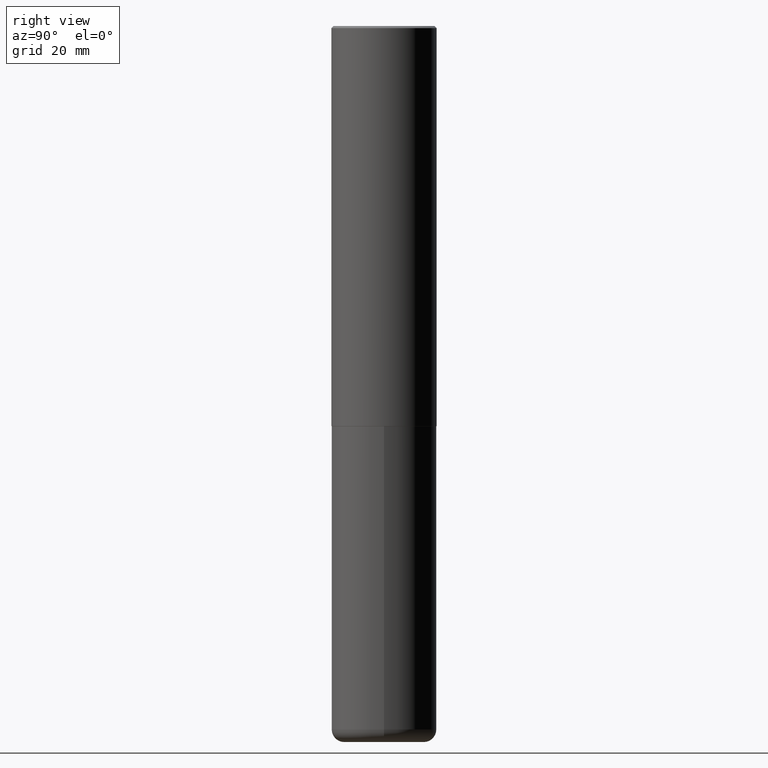
[diagram: clean part render]
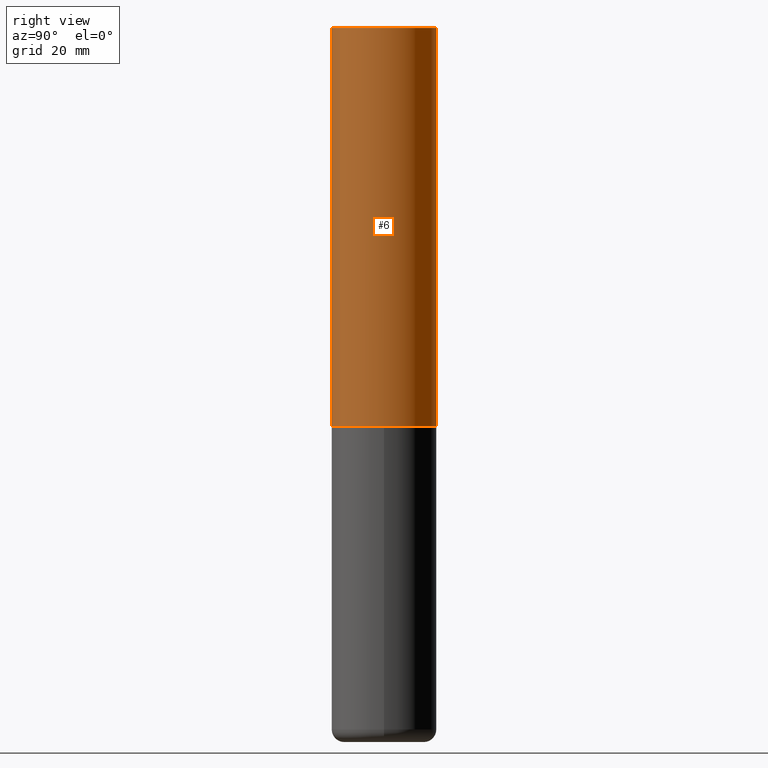
[diagram: same view with one face highlighted and labeled with its STEP entity id]
A machine part, right view. The second image highlights one B-rep face of the part: STEP entity #6.
In plain terms, the highlighted cylindrical surface (partial cylindrical patch) has radius 12.5006 mm, axis along (-0, 0, 1).
Its self-contained STEP definition (entity closure, byte-faithful):
#6 = ADVANCED_FACE ( 'NONE', ( #199 ), #52, .T. ) ;
#9 = VERTEX_POINT ( 'NONE', #45 ) ;
#33 = CARTESIAN_POINT ( 'NONE',  ( 4.891953188903329688E-31, -6.981508314288001687E-17, -0.02000000000000010797 ) ) ;
#42 = DIRECTION ( 'NONE',  ( -6.982962677686265922E-15, -1.000000000000000000, 3.330506545156063496E-15 ) ) ;
#45 = CARTESIAN_POINT ( 'NONE',  ( 3.436665081823295777E-15, 0.4921499999999998098, -0.02000000000000182188 ) ) ;
#50 = ORIENTED_EDGE ( 'NONE', *, *, #301, .T. ) ;
#52 = CYLINDRICAL_SURFACE ( 'NONE', #84, 0.4921500000000000874 ) ;
#54 = CARTESIAN_POINT ( 'NONE',  ( 0.000000000000000000, 0.000000000000000000, 0.000000000000000000 ) ) ;
#57 = CARTESIAN_POINT ( 'NONE',  ( 3.496936074043333291E-15, 0.4921500000000000874, -1.717974658438411319E-15 ) ) ;
#61 = AXIS2_PLACEMENT_3D ( 'NONE', #330, #157, #42 ) ;
#69 = VERTEX_POINT ( 'NONE', #182 ) ;
#84 = AXIS2_PLACEMENT_3D ( 'NONE', #54, #247, #312 ) ;
#99 = VERTEX_POINT ( 'NONE', #255 ) ;
#123 = DIRECTION ( 'NONE',  ( -2.445976594451651952E-29, 3.490754157143982552E-15, 1.000000000000000000 ) ) ;
#124 = AXIS2_PLACEMENT_3D ( 'NONE', #33, #123, #153 ) ;
#126 = CIRCLE ( 'NONE', #61, 0.4921500000000003650 ) ;
#131 = VECTOR ( 'NONE', #240, 39.37007874015748143 ) ;
#153 = DIRECTION ( 'NONE',  ( -6.982962677686265922E-15, -1.000000000000000000, 3.486624039460257331E-15 ) ) ;
#156 = EDGE_CURVE ( 'NONE', #69, #9, #253, .T. ) ;
#157 = DIRECTION ( 'NONE',  ( -2.445976594451651952E-29, 3.490754157143982552E-15, 1.000000000000000000 ) ) ;
#165 = CARTESIAN_POINT ( 'NONE',  ( -3.436665081823296565E-15, -0.4921500000000000874, 1.717974658438411319E-15 ) ) ;
#182 = CARTESIAN_POINT ( 'NONE',  ( 3.496936074043380229E-15, 0.4921499999999873198, -3.739100000000002311 ) ) ;
#193 = ORIENTED_EDGE ( 'NONE', *, *, #156, .T. ) ;
#199 = FACE_OUTER_BOUND ( 'NONE', #276, .T. ) ;
#202 = CIRCLE ( 'NONE', #124, 0.4921499999999999209 ) ;
#225 = EDGE_CURVE ( 'NONE', #230, #9, #202, .T. ) ;
#230 = VERTEX_POINT ( 'NONE', #355 ) ;
#240 = DIRECTION ( 'NONE',  ( -2.445976594451651672E-29, 3.490754157143982552E-15, 1.000000000000000000 ) ) ;
#247 = DIRECTION ( 'NONE',  ( -2.445976594451651952E-29, 3.490754157143982552E-15, 1.000000000000000000 ) ) ;
#253 = LINE ( 'NONE', #57, #405 ) ;
#255 = CARTESIAN_POINT ( 'NONE',  ( -3.436665081823207030E-15, -0.4921500000000134101, -3.739099999999998758 ) ) ;
#276 = EDGE_LOOP ( 'NONE', ( #50, #193, #394, #346 ) ) ;
#288 = EDGE_CURVE ( 'NONE', #99, #230, #358, .T. ) ;
#301 = EDGE_CURVE ( 'NONE', #99, #69, #126, .T. ) ;
#312 = DIRECTION ( 'NONE',  ( -6.982962677686265922E-15, -1.000000000000000000, 3.490754157143982552E-15 ) ) ;
#318 = DIRECTION ( 'NONE',  ( -2.445976594451651672E-29, 3.490754157143982552E-15, 1.000000000000000000 ) ) ;
#330 = CARTESIAN_POINT ( 'NONE',  ( 9.145751084314172604E-29, -1.305227886897706845E-14, -3.739100000000000534 ) ) ;
#346 = ORIENTED_EDGE ( 'NONE', *, *, #288, .F. ) ;
#355 = CARTESIAN_POINT ( 'NONE',  ( -3.376394089603257868E-15, -0.4921499999999999764, -0.01999999999999839059 ) ) ;
#358 = LINE ( 'NONE', #165, #131 ) ;
#394 = ORIENTED_EDGE ( 'NONE', *, *, #225, .F. ) ;
#405 = VECTOR ( 'NONE', #318, 39.37007874015748143 ) ;